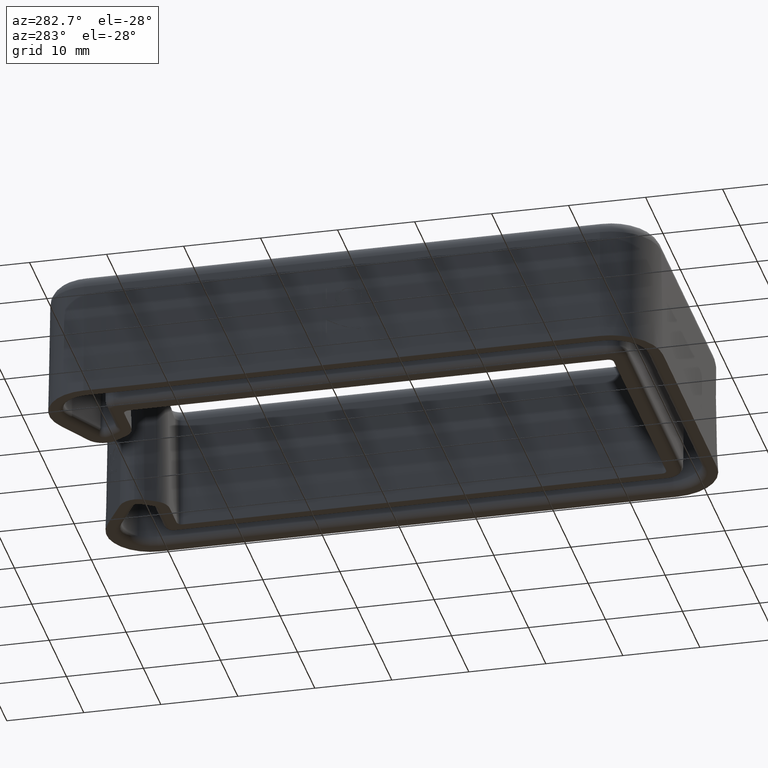
[diagram: clean part render]
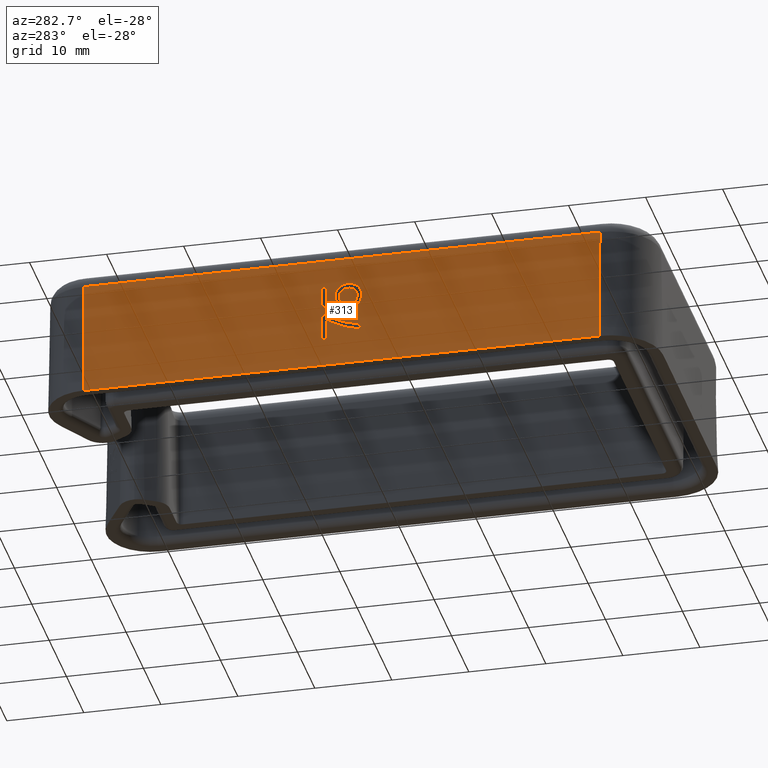
[diagram: same view with one face highlighted and labeled with its STEP entity id]
A machine part, auxiliary view. The second image highlights one B-rep face of the part: STEP entity #313.
In plain terms, the highlighted planar face has unit normal (0.9998, 0, -0.0175).
Its self-contained STEP definition (entity closure, byte-faithful):
#313=ADVANCED_FACE('',(#696),#697,.F.);
#696=FACE_OUTER_BOUND('',#1217,.T.);
#697=PLANE('',#1218);
#1217=EDGE_LOOP('',(#2977,#2978,#2979,#2980));
#1218=AXIS2_PLACEMENT_3D('',#2981,#2982,#2983);
#2977=ORIENTED_EDGE('',*,*,#4003,.T.);
#2978=ORIENTED_EDGE('',*,*,#4004,.T.);
#2979=ORIENTED_EDGE('',*,*,#4005,.F.);
#2980=ORIENTED_EDGE('',*,*,#3944,.T.);
#2981=CARTESIAN_POINT('',(-21.9500000000041,3.95000000000738,17.0));
#2982=DIRECTION('',(0.999847695156391,1.39170940763598E-13,-0.0174524064372835));
#2983=DIRECTION('',(-0.0174524064372835,0.0,-0.999847695156391));
#3944=EDGE_CURVE('',#4772,#4770,#4773,.F.);
#4003=EDGE_CURVE('',#4770,#4872,#4874,.T.);
#4004=EDGE_CURVE('',#4872,#4875,#4876,.F.);
#4005=EDGE_CURVE('',#4772,#4875,#4877,.T.);
#4770=VERTEX_POINT('',#6853);
#4772=VERTEX_POINT('',#6855);
#4773=LINE('',#6856,#6857);
#4872=VERTEX_POINT('',#6991);
#4874=LINE('',#6993,#6994);
#4875=VERTEX_POINT('',#6995);
#4876=LINE('',#6996,#6997);
#4877=LINE('',#6998,#6999);
#6853=CARTESIAN_POINT('',(-22.2467361037839,4.49999999998516,0.0));
#6855=CARTESIAN_POINT('',(-22.2467361037935,71.4999999999825,0.0));
#6856=CARTESIAN_POINT('',(-22.2467361037839,3.95000000000734,0.0));
#6857=VECTOR('',#7584,1000.0);
#6991=CARTESIAN_POINT('',(-21.9843008640856,4.4999999999852,15.0349048128745));
#6993=CARTESIAN_POINT('',(-21.9500000000043,4.4999999999852,17.0));
#6994=VECTOR('',#7689,1000.0);
#6995=CARTESIAN_POINT('',(-21.9843008640952,71.4999999999826,15.0349048128745));
#6996=CARTESIAN_POINT('',(-21.984300864095,71.4999999999826,15.0349048128745));
#6997=VECTOR('',#7690,1000.0);
#6998=CARTESIAN_POINT('',(-21.9500000000138,71.4999999999826,17.0));
#6999=VECTOR('',#7691,1000.0);
#7584=DIRECTION('',(-1.39192140400773E-13,1.0,0.0));
#7689=DIRECTION('',(0.0174524064372835,2.42923780714972E-15,0.999847695156391));
#7690=DIRECTION('',(1.39192140400773E-13,-1.0,3.94370360647266E-31));
#7691=DIRECTION('',(0.0174524064372835,2.4442281889869E-15,0.999847695156391));